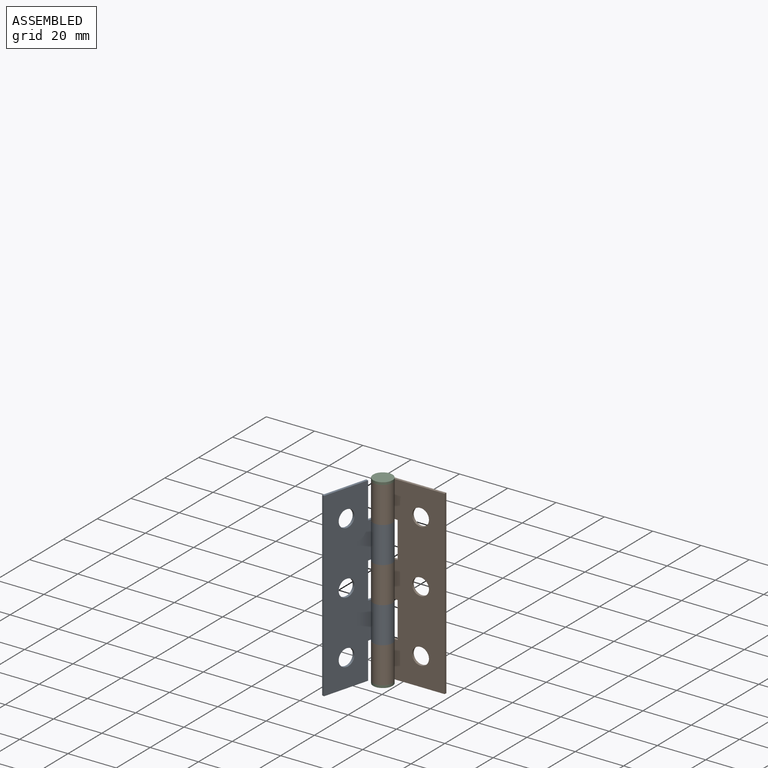
[diagram: assembled view]
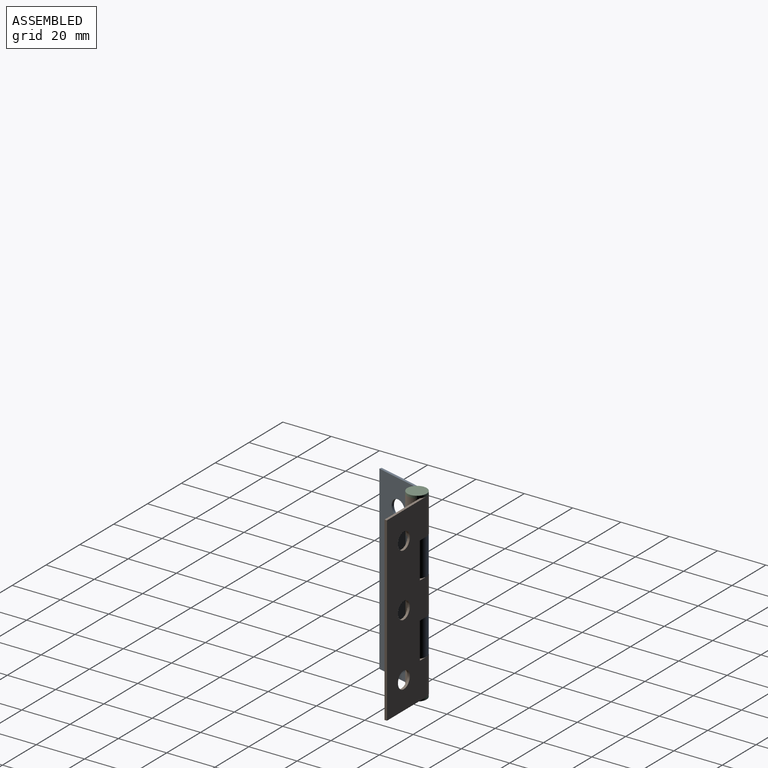
[diagram: assembled view, second angle]
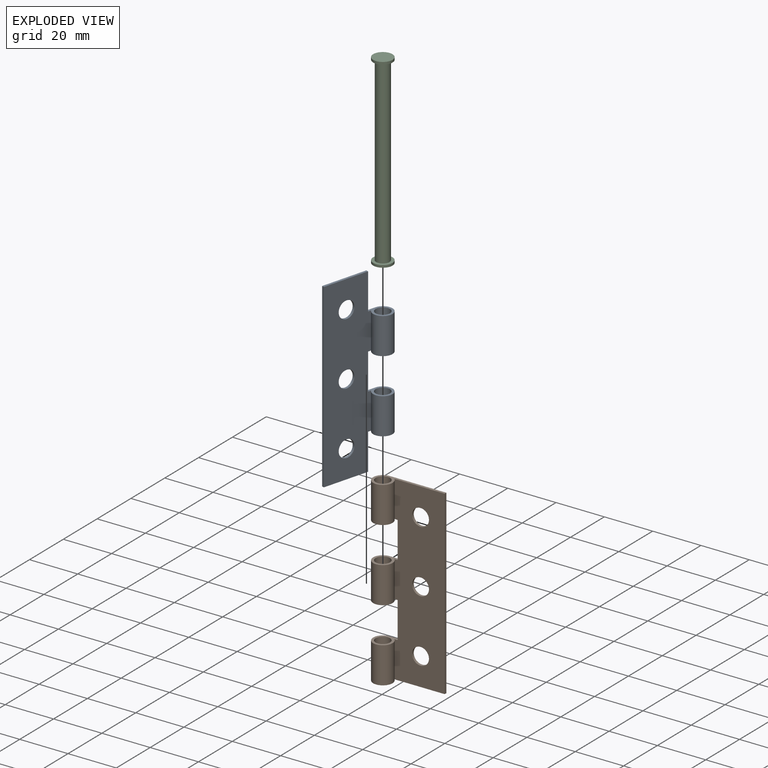
[diagram: exploded view]
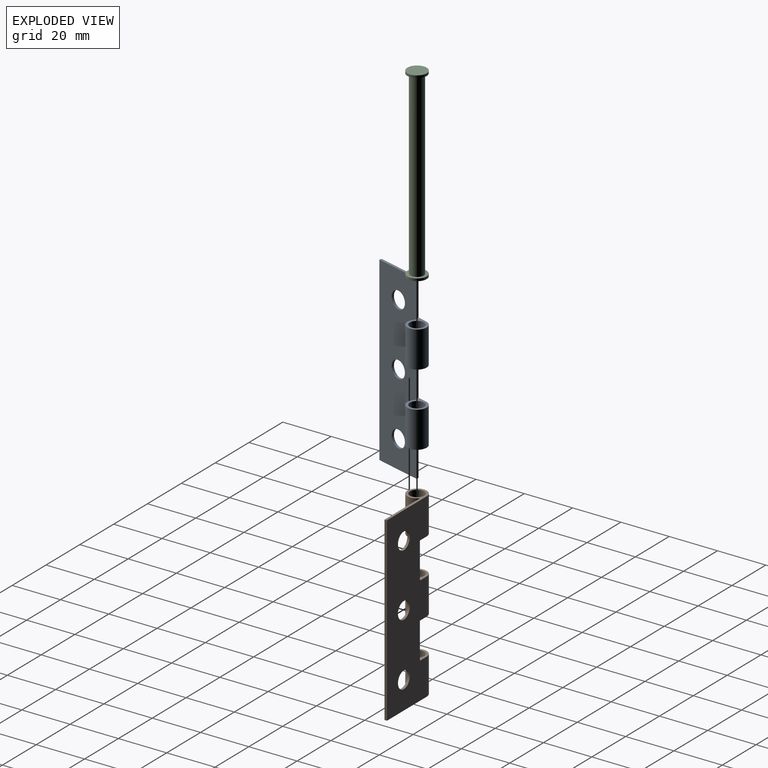
[diagram: exploded view, second angle]
ASSEMBLY  parts=3 mates=3
PART A: 19 faces, bbox 27.5x8x75 mm
  f0: plane 75x20.85mm, normal (0,-1,0), area 1387.7mm2, adj f2,f3,f4,f5,f6,f7,f8,f9
  f1: plane 75x23.5mm, normal (0,1,0), area 1467mm2, adj f2,f3,f4,f5,f6,f7,f8,f9
  f2: cylinder r=4mm len=15mm, axis (0,0,-1), area 333.6mm2, adj f0,f1,f14,f16
  f3: plane 75x1mm, normal (1,0,0), area 75mm2, adj f0,f1,f4,f7
  f4: plane 19.5x1mm, normal (0,0,1), area 19.5mm2, adj f0,f1,f3,f15
  f5: cylinder r=3.5mm len=7mm, axis (0,1,0), area 22mm2, adj f0,f1
  f6: cylinder r=3.5mm len=7mm, axis (0,1,0), area 22mm2, adj f0,f1
  f7: plane 19.5x1mm, normal (0,0,-1), area 19.5mm2, adj f0,f1,f3,f10
  f8: cylinder r=3.5mm len=7mm, axis (0,1,0), area 22mm2, adj f0,f1
  f9: cylinder r=4mm len=15mm, axis (0,0,-1), area 333.6mm2, adj f0,f1,f11,f13
  f10: plane 15x1mm, normal (-1,0,0), area 15mm2, adj f0,f1,f7,f11
  f11: plane 8x8mm, normal (0,0,-1), area 24.2mm2, adj f0,f1,f9,f10,f17
  f12: plane 15x1mm, normal (-1,0,0), area 15mm2, adj f0,f1,f13,f14
  f13: plane 8x8mm, normal (0,0,1), area 24.2mm2, adj f0,f1,f9,f12,f17
  f14: plane 8x8mm, normal (0,0,-1), area 24.2mm2, adj f0,f1,f2,f12,f18
  f15: plane 15x1mm, normal (-1,0,0), area 15mm2, adj f0,f1,f4,f16
  f16: plane 8x8mm, normal (0,0,1), area 24.2mm2, adj f0,f1,f2,f15,f18
  f17: cylinder r=3mm len=15mm, axis (0,0,-1), area 282.7mm2, adj f11,f13
  f18: cylinder r=3mm len=15mm, axis (0,0,-1), area 282.7mm2, adj f14,f16
PART B: 20 faces, bbox 27.5x8x75 mm
  f0: plane 75x20.85mm, normal (0,-1,0), area 1408mm2, adj f2,f3,f4,f7,f8,f9,f10,f11
  f1: plane 75x23.5mm, normal (0,1,0), area 1527mm2, adj f2,f3,f4,f7,f8,f9,f10,f11
  f2: cylinder r=4mm len=15mm, axis (0,0,-1), area 333.6mm2, adj f0,f1,f11,f18
  f3: cylinder r=4mm len=15mm, axis (0,0,-1), area 333.6mm2, adj f0,f1,f14,f19
  f4: cylinder r=4mm len=15mm, axis (0,0,-1), area 333.6mm2, adj f0,f1,f8,f15
  f5: cylinder r=3mm len=15mm, axis (0,0,-1), area 282.7mm2, adj f11,f18
  f6: cylinder r=3mm len=15mm, axis (0,0,-1), area 282.7mm2, adj f8,f15
  f7: plane 75x1mm, normal (1,0,0), area 75mm2, adj f0,f1,f8,f11
  f8: plane 27.5x8mm, normal (0,0,1), area 43.7mm2, adj f0,f1,f4,f6,f7
  f9: cylinder r=3.5mm len=7mm, axis (0,1,0), area 22mm2, adj f0,f1
  f10: cylinder r=3.5mm len=7mm, axis (0,1,0), area 22mm2, adj f0,f1
  f11: plane 27.5x8mm, normal (0,0,-1), area 43.7mm2, adj f0,f1,f2,f5,f7
  f12: cylinder r=3.5mm len=7mm, axis (0,1,0), area 22mm2, adj f0,f1
  f13: plane 15x1mm, normal (-1,0,0), area 15mm2, adj f0,f1,f14,f15
  f14: plane 8x8mm, normal (0,0,1), area 24.2mm2, adj f0,f1,f3,f13,f16
  f15: plane 8x8mm, normal (0,0,-1), area 24.2mm2, adj f0,f1,f4,f6,f13
  f16: cylinder r=3mm len=15mm, axis (0,0,-1), area 282.7mm2, adj f14,f19
  f17: plane 15x1mm, normal (-1,0,0), area 15mm2, adj f0,f1,f18,f19
  f18: plane 8x8mm, normal (0,0,1), area 24.2mm2, adj f0,f1,f2,f5,f17
  f19: plane 8x8mm, normal (0,0,-1), area 24.2mm2, adj f0,f1,f3,f16,f17
PART C: 7 faces, bbox 8x8x77 mm
  f0: cylinder r=2.75mm len=75mm, axis (0,0,-1), area 1295.9mm2, adj f3,f6
  f1: cylinder r=4mm len=8mm, axis (0,0,-1), area 25.1mm2, adj f2,f3
  f2: plane 8x8mm, normal (0,0,1), area 50.3mm2, adj f1
  f3: plane 8x8mm, normal (0,0,-1), area 26.5mm2, adj f0,f1
  f4: cylinder r=4mm len=8mm, axis (0,0,1), area 25.1mm2, adj f5,f6
  f5: plane 8x8mm, normal (0,0,-1), area 50.3mm2, adj f4
  f6: plane 8x8mm, normal (0,0,1), area 26.5mm2, adj f0,f4
PLACE A rot(axis=(0.61,-0.79,0),180deg) t=(-53.37,-36.35,8.05)mm
PLACE B t=(-19.87,-10.71,8.05)mm fixed
PLACE C t=(-19.87,-10.71,8.05)mm
MATE cylindrical B.f2 <-> C.f0  axis (0,0,-1) through (-43.37,-14.71,-29.45)mm
MATE planar B.f2 <-> A.f2  axis (0,0,-1) through (-43.37,-14.71,30.55)mm
MATE cylindrical A.f2 <-> B.f2  axis (0,0,1) through (-43.37,-14.71,30.55)mm
